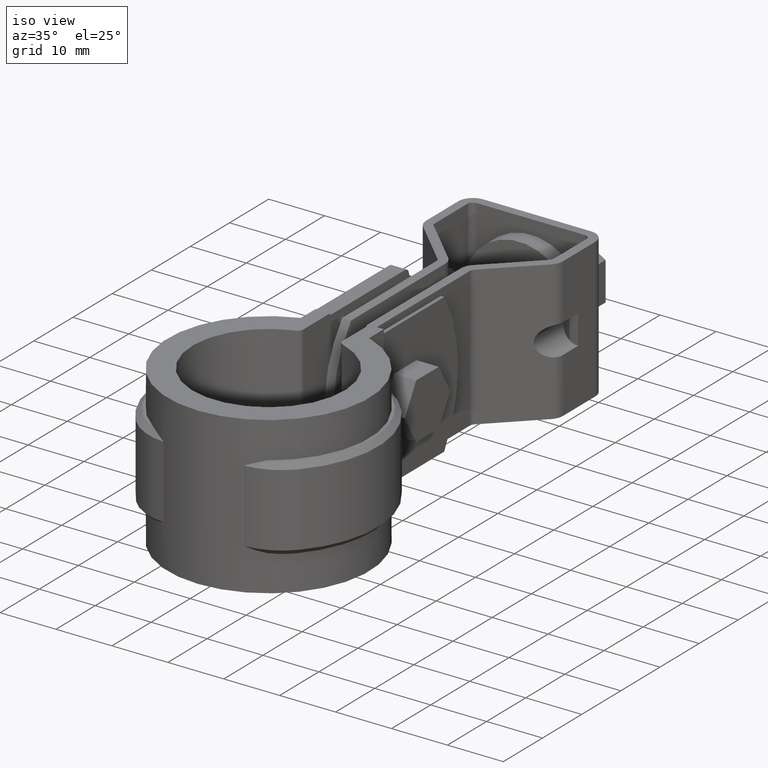
[diagram: clean part render]
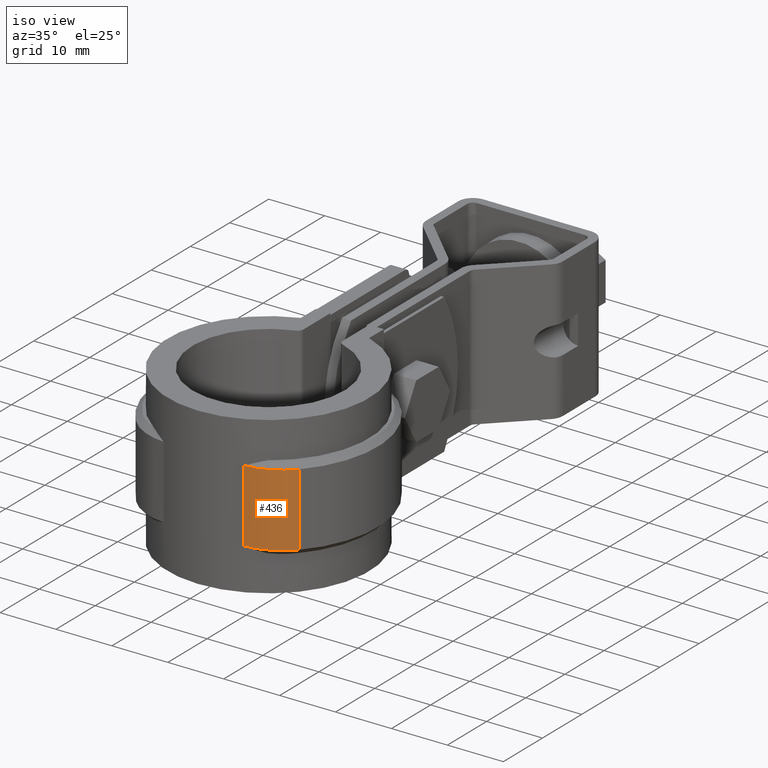
[diagram: same view with one face highlighted and labeled with its STEP entity id]
A machine part, iso view. The second image highlights one B-rep face of the part: STEP entity #436.
In plain terms, the highlighted cylindrical surface (partial cylindrical patch) has radius 10.6 mm, axis along (0, 0, -1).
Its self-contained STEP definition (entity closure, byte-faithful):
#436 = ADVANCED_FACE( '', ( #842 ), #843, .T. );
#842 = FACE_OUTER_BOUND( '', #1731, .T. );
#843 = CYLINDRICAL_SURFACE( '', #1732, 10.6000000000000 );
#1731 = EDGE_LOOP( '', ( #3564, #3565, #3566, #3567 ) );
#1732 = AXIS2_PLACEMENT_3D( '', #3568, #3569, #3570 );
#3564 = ORIENTED_EDGE( '', *, *, #6233, .T. );
#3565 = ORIENTED_EDGE( '', *, *, #6222, .T. );
#3566 = ORIENTED_EDGE( '', *, *, #6195, .F. );
#3567 = ORIENTED_EDGE( '', *, *, #6190, .T. );
#3568 = CARTESIAN_POINT( '', ( 6.65677286678762, -5.96000000000000, -20.0000000000000 ) );
#3569 = DIRECTION( '', ( 0.000000000000000, 0.000000000000000, -1.00000000000000 ) );
#3570 = DIRECTION( '', ( 0.261069874584080, 0.965319905826381, 0.000000000000000 ) );
#6190 = EDGE_CURVE( '', #7261, #7259, #7262, .T. );
#6195 = EDGE_CURVE( '', #7261, #7269, #7270, .T. );
#6222 = EDGE_CURVE( '', #7310, #7269, #7314, .F. );
#6233 = EDGE_CURVE( '', #7259, #7310, #7327, .T. );
#7259 = VERTEX_POINT( '', #9741 );
#7261 = VERTEX_POINT( '', #9744 );
#7262 = CIRCLE( '', #9745, 10.6000000000000 );
#7269 = VERTEX_POINT( '', #9756 );
#7270 = LINE( '', #9757, #9758 );
#7310 = VERTEX_POINT( '', #9824 );
#7314 = CIRCLE( '', #9829, 10.6000000000000 );
#7327 = LINE( '', #9844, #9845 );
#9741 = CARTESIAN_POINT( '', ( 14.5540076052262, -13.0306211527700, -19.0000000000000 ) );
#9744 = CARTESIAN_POINT( '', ( 7.17238060487721, -16.5474524159697, -19.0000000000000 ) );
#9745 = AXIS2_PLACEMENT_3D( '', #12265, #12266, #12267 );
#9756 = CARTESIAN_POINT( '', ( 7.17238060487721, -16.5474524159697, -6.00000000000000 ) );
#9757 = CARTESIAN_POINT( '', ( 7.17238060487721, -16.5474524159697, -12.5000000000000 ) );
#9758 = VECTOR( '', #12275, 1000.00000000000 );
#9824 = CARTESIAN_POINT( '', ( 14.5540076052262, -13.0306211527700, -6.00000000000000 ) );
#9829 = AXIS2_PLACEMENT_3D( '', #12315, #12316, #12317 );
#9844 = CARTESIAN_POINT( '', ( 14.5540076052262, -13.0306211527700, -20.0000000000000 ) );
#9845 = VECTOR( '', #12344, 1000.00000000000 );
#12265 = CARTESIAN_POINT( '', ( 6.65677286678762, -5.96000000000000, -19.0000000000000 ) );
#12266 = DIRECTION( '', ( 0.000000000000000, 0.000000000000000, 1.00000000000000 ) );
#12267 = DIRECTION( '', ( 1.00000000000000, 0.000000000000000, 0.000000000000000 ) );
#12275 = DIRECTION( '', ( 0.000000000000000, 0.000000000000000, 1.00000000000000 ) );
#12315 = CARTESIAN_POINT( '', ( 6.65677286678762, -5.96000000000000, -6.00000000000000 ) );
#12316 = DIRECTION( '', ( 0.000000000000000, 0.000000000000000, 1.00000000000000 ) );
#12317 = DIRECTION( '', ( 1.00000000000000, 0.000000000000000, 0.000000000000000 ) );
#12344 = DIRECTION( '', ( 0.000000000000000, 0.000000000000000, 1.00000000000000 ) );